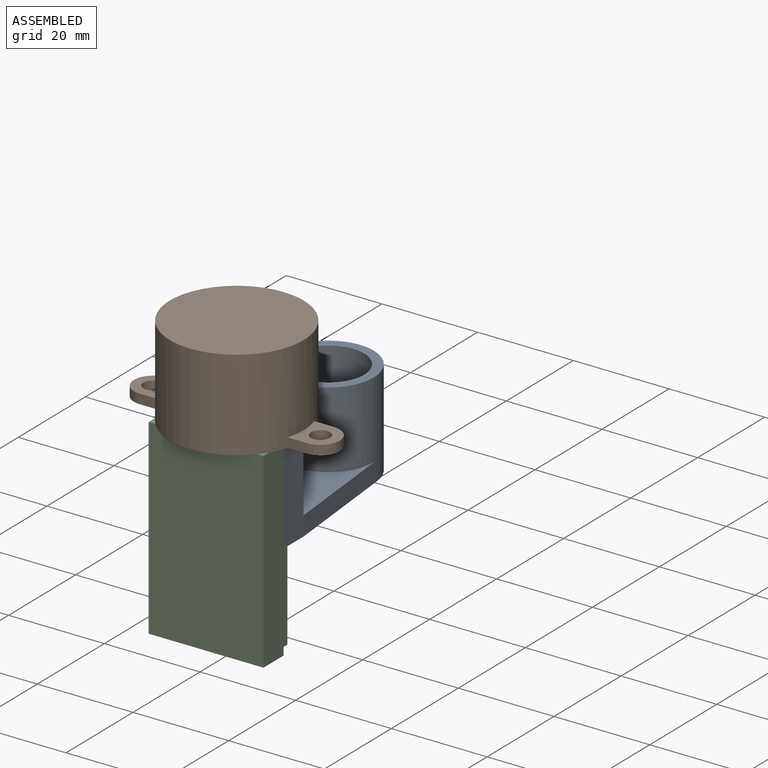
[diagram: assembled view]
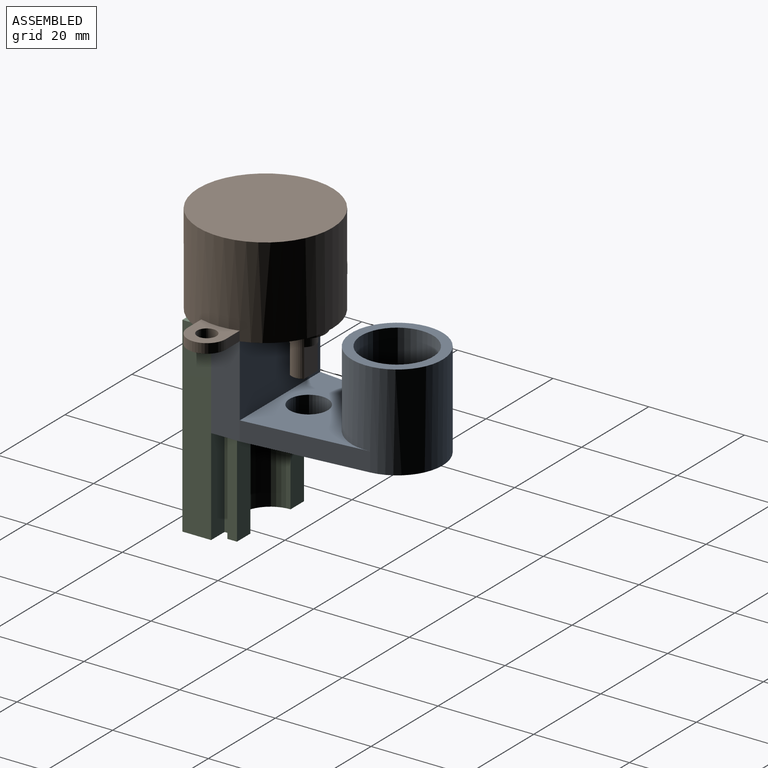
[diagram: assembled view, second angle]
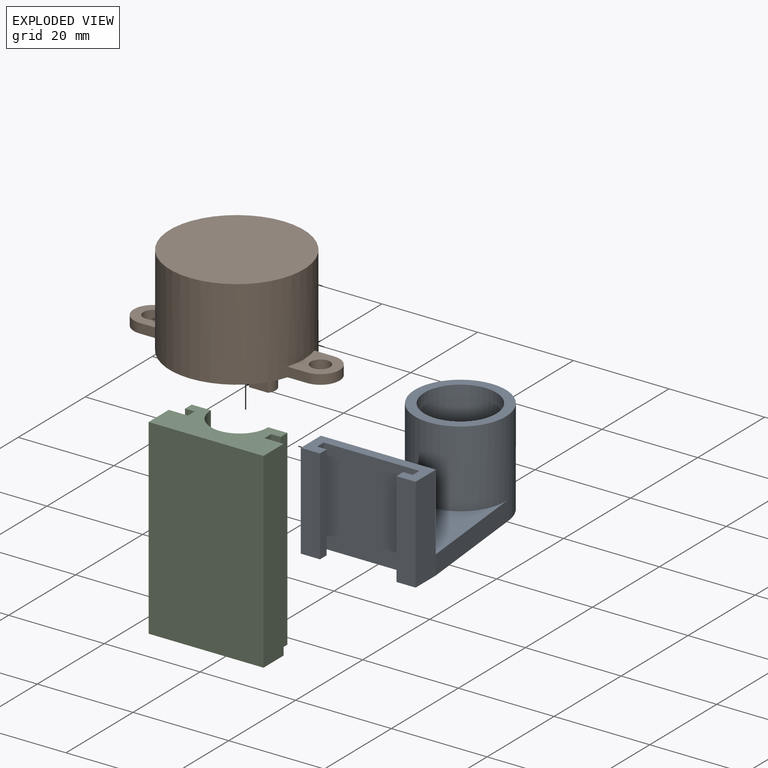
[diagram: exploded view]
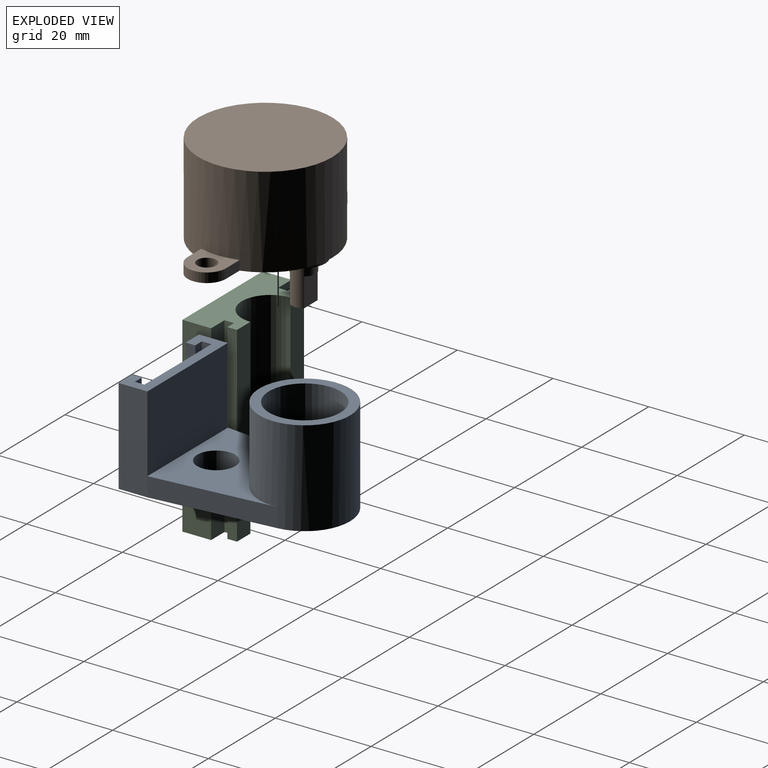
[diagram: exploded view, second angle]
ASSEMBLY  parts=3 mates=3
PART A: 21 faces, bbox 24x40x20 mm
  f0: plane 24x16mm, normal (0,1,0), area 384mm2, adj f1,f11,f12,f17
  f1: plane 20x6mm, normal (-1,0,0), area 120mm2, adj f0,f2,f12,f13,f15
  f2: plane 20x4mm, normal (0,-1,0), area 80mm2, adj f1,f3,f12,f13
  f3: plane 20x2mm, normal (1,0,0), area 40mm2, adj f2,f4,f12,f13
  f4: plane 20x2mm, normal (0,1,0), area 40mm2, adj f3,f5,f12,f13
  f5: plane 20x2mm, normal (1,0,0), area 40mm2, adj f4,f6,f12,f13
  f6: plane 20x20mm, normal (0,-1,0), area 400mm2, adj f5,f7,f12,f13
  f7: plane 20x2mm, normal (-1,0,0), area 40mm2, adj f6,f8,f12,f13
  f8: plane 20x2mm, normal (0,1,0), area 40mm2, adj f7,f9,f12,f13
  f9: plane 20x2mm, normal (-1,0,0), area 40mm2, adj f8,f10,f12,f13
  f10: plane 20x4mm, normal (0,-1,0), area 80mm2, adj f9,f11,f12,f13
  f11: plane 20x6mm, normal (1,0,0), area 120mm2, adj f0,f10,f12,f13,f14
  f12: plane 24x6mm, normal (0,0,1), area 72mm2, adj f0,f1,f2,f3,f4,f5,f6,f7
  f13: plane 40x24mm, normal (0,0,-1), area 514.7mm2, adj f1,f2,f3,f4,f5,f6,f7,f8
  f14: plane 25.45x4mm, normal (1,0.1,0), area 102.3mm2, adj f11,f13,f17,f19
  f15: plane 25.45x4mm, normal (-1,0.1,0), area 102.3mm2, adj f1,f13,f17,f19
  f16: cylinder r=4mm len=8mm, axis (0,0,-1), area 100.5mm2, adj f13,f17
  f17: plane 25.45x24mm, normal (0,0,1), area 335.9mm2, adj f0,f14,f15,f16,f19
  f18: cylinder r=7.5mm len=20mm, axis (0,0,-1), area 942.5mm2, adj f13,f20
  f19: cylinder r=9.5mm len=20mm, axis (0,0,-1), area 1066.8mm2, adj f13,f14,f15,f17,f20
  f20: plane 19x19mm, normal (0,0,1), area 106.8mm2, adj f18,f19
PART B: 21 faces, bbox 43x29x28 mm
  f0: plane 4x1mm, normal (0,-1,0), area 2.8mm2, adj f17,f18
  f1: plane 4x1mm, normal (0,-1,0), area 2.8mm2, adj f17,f19
  f2: cylinder r=14mm len=28mm, axis (0,-1,0), area 1638.9mm2, adj f3,f4,f5,f6,f9,f10,f13,f14
  f3: plane 28x28mm, normal (0,1,0), area 615.8mm2, adj f2
  f4: plane 43x28mm, normal (0,-1,0), area 636.4mm2, adj f2,f5,f6,f7,f8,f10,f11,f12
  f5: plane 4.08x2mm, normal (0,0,1), area 8.2mm2, adj f2,f4,f7,f9
  f6: plane 4.08x2mm, normal (0,0,-1), area 8.2mm2, adj f2,f4,f7,f9
  f7: cylinder r=4mm len=8mm, axis (0,-1,0), area 25.1mm2, adj f4,f5,f6,f9
  f8: cylinder r=2mm len=4mm, axis (0,-1,0), area 25.1mm2, adj f4,f9
  f9: plane 8.08x8mm, normal (0,1,0), area 42.1mm2, adj f2,f5,f6,f7,f8
  f10: plane 4.08x2mm, normal (0,0,1), area 8.2mm2, adj f2,f4,f11,f14
  f11: cylinder r=4mm len=8mm, axis (0,-1,0), area 25.1mm2, adj f4,f10,f13,f14
  f12: cylinder r=2mm len=4mm, axis (0,-1,0), area 25.1mm2, adj f4,f14
  f13: plane 4.08x2mm, normal (0,0,-1), area 8.2mm2, adj f2,f4,f11,f14
  f14: plane 8.08x8mm, normal (0,1,0), area 42.1mm2, adj f2,f10,f11,f12,f13
  f15: cylinder r=4.5mm len=9mm, axis (0,1,0), area 42.4mm2, adj f4,f16
  f16: plane 9x9mm, normal (0,-1,0), area 44mm2, adj f15,f17
  f17: cylinder r=2.5mm len=8.5mm, axis (0,1,0), area 77.9mm2, adj f0,f1,f16,f18,f19,f20
  f18: plane 6x4mm, normal (0,0,1), area 24mm2, adj f0,f17,f20
  f19: plane 6x4mm, normal (0,0,-1), area 24mm2, adj f1,f17,f20
  f20: plane 5x3mm, normal (0,-1,0), area 14mm2, adj f17,f18,f19
PART C: 16 faces, bbox 24x10x40 mm
  f0: cylinder r=6mm len=40mm, axis (0,0,-1), area 754mm2, adj f1,f13,f14,f15
  f1: plane 40x4mm, normal (0,1,0), area 160mm2, adj f0,f2,f14,f15
  f2: plane 40x2mm, normal (-1,0,0), area 80mm2, adj f1,f3,f14,f15
  f3: plane 40x2mm, normal (0,-1,0), area 80mm2, adj f2,f4,f14,f15
  f4: plane 40x2mm, normal (-1,0,0), area 80mm2, adj f3,f5,f14,f15
  f5: plane 40x4mm, normal (0,1,0), area 160mm2, adj f4,f6,f14,f15
  f6: plane 40x6mm, normal (-1,0,0), area 240mm2, adj f5,f7,f14,f15
  f7: plane 40x24mm, normal (0,-1,0), area 960mm2, adj f6,f8,f14,f15
  f8: plane 40x6mm, normal (1,0,0), area 240mm2, adj f7,f9,f14,f15
  f9: plane 40x4mm, normal (0,1,0), area 160mm2, adj f8,f10,f14,f15
  f10: plane 40x2mm, normal (1,0,0), area 80mm2, adj f9,f11,f14,f15
  f11: plane 40x2mm, normal (0,-1,0), area 80mm2, adj f10,f12,f14,f15
  f12: plane 40x2mm, normal (1,0,0), area 80mm2, adj f11,f13,f14,f15
  f13: plane 40x4mm, normal (0,1,0), area 160mm2, adj f0,f12,f14,f15
  f14: plane 24x10mm, normal (0,0,1), area 159.5mm2, adj f0,f1,f2,f3,f4,f5,f6,f7
  f15: plane 24x10mm, normal (0,0,-1), area 159.5mm2, adj f0,f1,f2,f3,f4,f5,f6,f7
PLACE A t=(37.58,21.78,4.16)mm
PLACE B rot(axis=(0,-0.71,-0.71),180deg) t=(37.68,-5.7,23.94)mm
PLACE C t=(37.58,-10.72,-16.06)mm fixed
MATE planar B.f2 <-> C.f14  axis (0,0,-1) through (37.68,-5.7,23.94)mm
MATE planar C.f12 <-> A.f7  axis (1,0,0) through (47.58,-5.72,3.94)mm
MATE planar C.f1 <-> A.f6  axis (0,1,0) through (29.58,-4.72,3.94)mm
